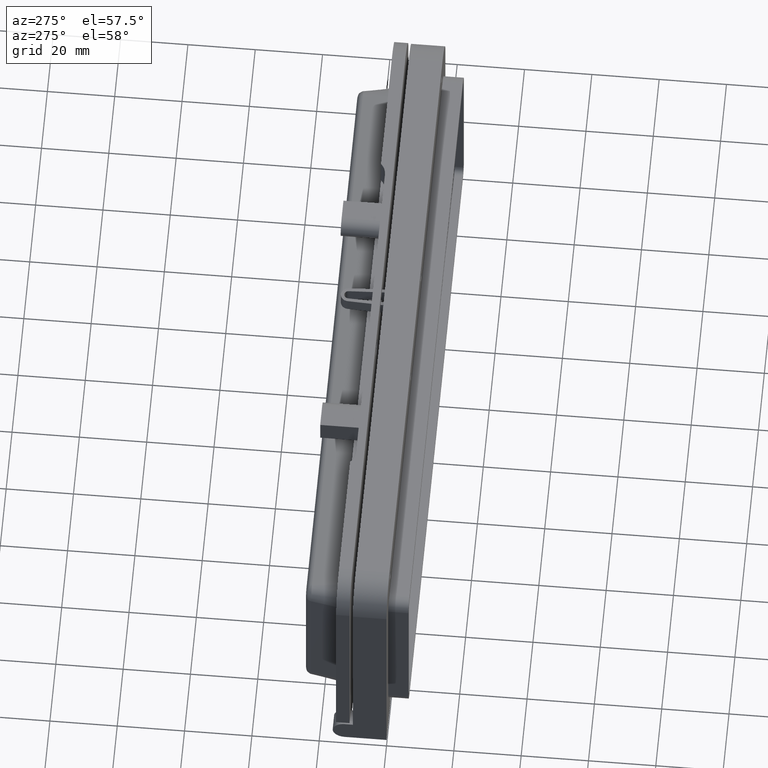
[diagram: clean part render]
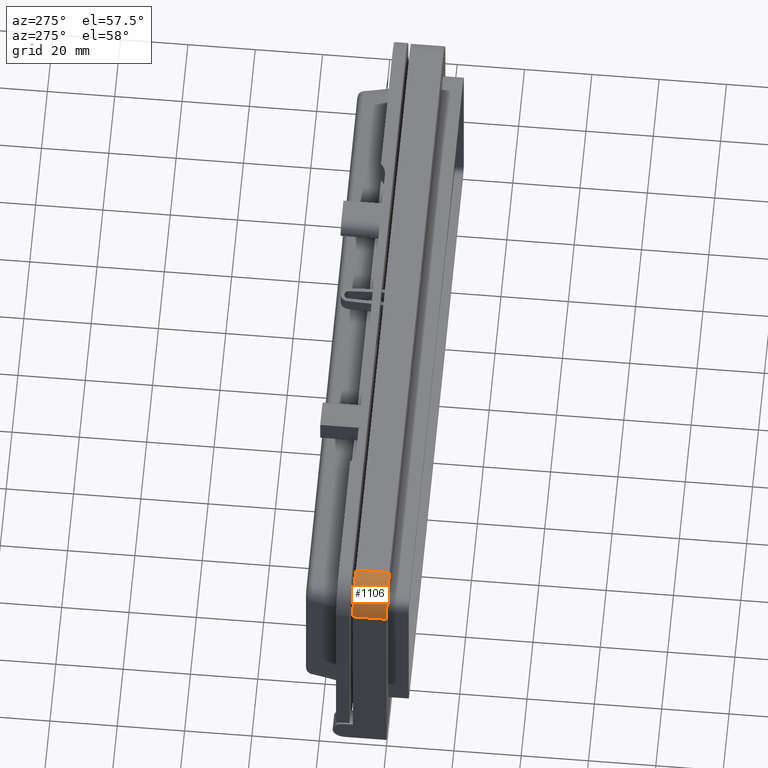
[diagram: same view with one face highlighted and labeled with its STEP entity id]
A machine part, auxiliary view. The second image highlights one B-rep face of the part: STEP entity #1106.
In plain terms, the highlighted cylindrical surface (edge-blend (fillet) strip) has radius 10 mm, axis along (0, -1, 0).
Its self-contained STEP definition (entity closure, byte-faithful):
#605 = VERTEX_POINT ( 'NONE', #1455 ) ;
#612 = EDGE_CURVE ( 'NONE', #605, #660, #1509, .T. ) ;
#656 = VERTEX_POINT ( 'NONE', #1567 ) ;
#658 = EDGE_CURVE ( 'NONE', #660, #656, #1566, .T. ) ;
#660 = VERTEX_POINT ( 'NONE', #1557 ) ;
#727 = EDGE_CURVE ( 'NONE', #656, #728, #1755, .T. ) ;
#728 = VERTEX_POINT ( 'NONE', #1751 ) ;
#986 = ORIENTED_EDGE ( 'NONE', *, *, #727, .F. ) ;
#989 = ORIENTED_EDGE ( 'NONE', *, *, #658, .F. ) ;
#991 = ORIENTED_EDGE ( 'NONE', *, *, #612, .F. ) ;
#1010 = EDGE_CURVE ( 'NONE', #728, #605, #3208, .T. ) ;
#1103 = ORIENTED_EDGE ( 'NONE', *, *, #1010, .F. ) ;
#1106 = ADVANCED_FACE ( 'NONE', ( #3877 ), #3954, .T. ) ;
#1107 = EDGE_LOOP ( 'NONE', ( #1103, #986, #989, #991 ) ) ;
#1455 = CARTESIAN_POINT ( 'NONE',  ( -90.00000000000002800, 10.00000000000000000, 38.25000000000000000 ) ) ;
#1506 = DIRECTION ( 'NONE',  ( 0.0000000000000000000, -1.000000000000000000, 0.0000000000000000000 ) ) ;
#1507 = VECTOR ( 'NONE', #1506, 1000.000000000000000 ) ;
#1508 = CARTESIAN_POINT ( 'NONE',  ( -90.00000000000002800, 10.00000000000000000, 38.25000000000000000 ) ) ;
#1509 = LINE ( 'NONE', #1508, #1507 ) ;
#1557 = CARTESIAN_POINT ( 'NONE',  ( -90.00000000000002800, 0.0000000000000000000, 38.25000000000000000 ) ) ;
#1562 = DIRECTION ( 'NONE',  ( 0.0000000000000000000, 0.0000000000000000000, 1.000000000000000000 ) ) ;
#1563 = DIRECTION ( 'NONE',  ( -0.0000000000000000000, -1.000000000000000000, -0.0000000000000000000 ) ) ;
#1564 = CARTESIAN_POINT ( 'NONE',  ( -90.00000000000002800, 0.0000000000000000000, 28.24999999999999600 ) ) ;
#1565 = AXIS2_PLACEMENT_3D ( 'NONE', #1564, #1563, #1562 ) ;
#1566 = CIRCLE ( 'NONE', #1565, 10.00000000000000200 ) ;
#1567 = CARTESIAN_POINT ( 'NONE',  ( -100.0000000000000100, 0.0000000000000000000, 28.25000000000000400 ) ) ;
#1751 = CARTESIAN_POINT ( 'NONE',  ( -100.0000000000000100, 10.00000000000000000, 28.25000000000000400 ) ) ;
#1752 = DIRECTION ( 'NONE',  ( -0.0000000000000000000, 1.000000000000000000, -0.0000000000000000000 ) ) ;
#1753 = VECTOR ( 'NONE', #1752, 1000.000000000000000 ) ;
#1754 = CARTESIAN_POINT ( 'NONE',  ( -100.0000000000000100, 10.00000000000000000, 28.25000000000000400 ) ) ;
#1755 = LINE ( 'NONE', #1754, #1753 ) ;
#3203 = DIRECTION ( 'NONE',  ( 0.0000000000000000000, 0.0000000000000000000, 1.000000000000000000 ) ) ;
#3204 = DIRECTION ( 'NONE',  ( 0.0000000000000000000, 1.000000000000000000, 0.0000000000000000000 ) ) ;
#3206 = CARTESIAN_POINT ( 'NONE',  ( -90.00000000000002800, 10.00000000000000000, 28.24999999999999600 ) ) ;
#3207 = AXIS2_PLACEMENT_3D ( 'NONE', #3206, #3204, #3203 ) ;
#3208 = CIRCLE ( 'NONE', #3207, 10.00000000000000200 ) ;
#3877 = FACE_OUTER_BOUND ( 'NONE', #1107, .T. ) ;
#3944 = DIRECTION ( 'NONE',  ( 0.0000000000000000000, 0.0000000000000000000, -1.000000000000000000 ) ) ;
#3946 = DIRECTION ( 'NONE',  ( 0.0000000000000000000, -1.000000000000000000, 0.0000000000000000000 ) ) ;
#3948 = CARTESIAN_POINT ( 'NONE',  ( -90.00000000000002800, 10.00000000000000000, 28.24999999999999600 ) ) ;
#3950 = AXIS2_PLACEMENT_3D ( 'NONE', #3948, #3946, #3944 ) ;
#3954 = CYLINDRICAL_SURFACE ( 'NONE', #3950, 10.00000000000000200 ) ;